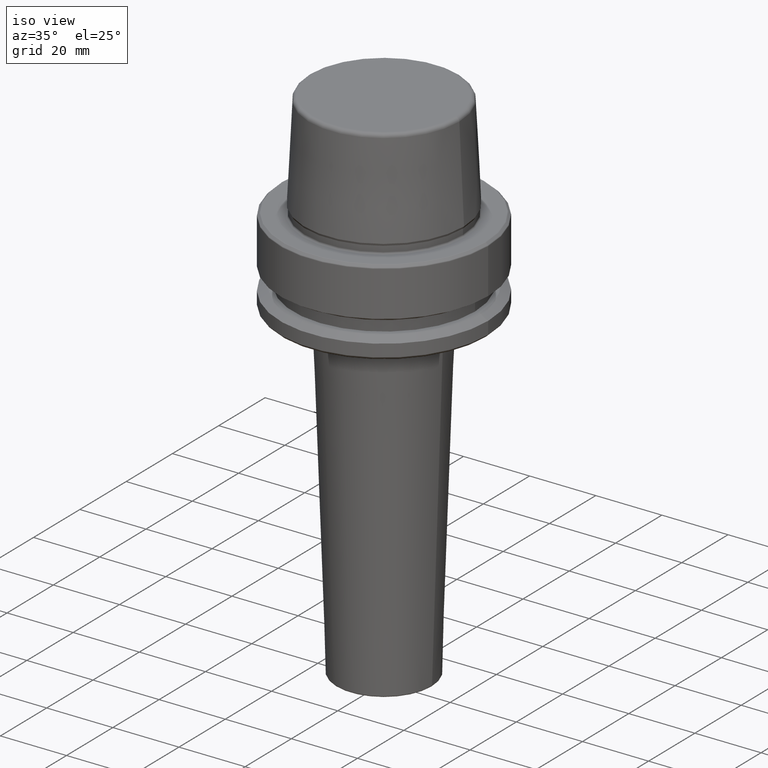
[diagram: clean part render]
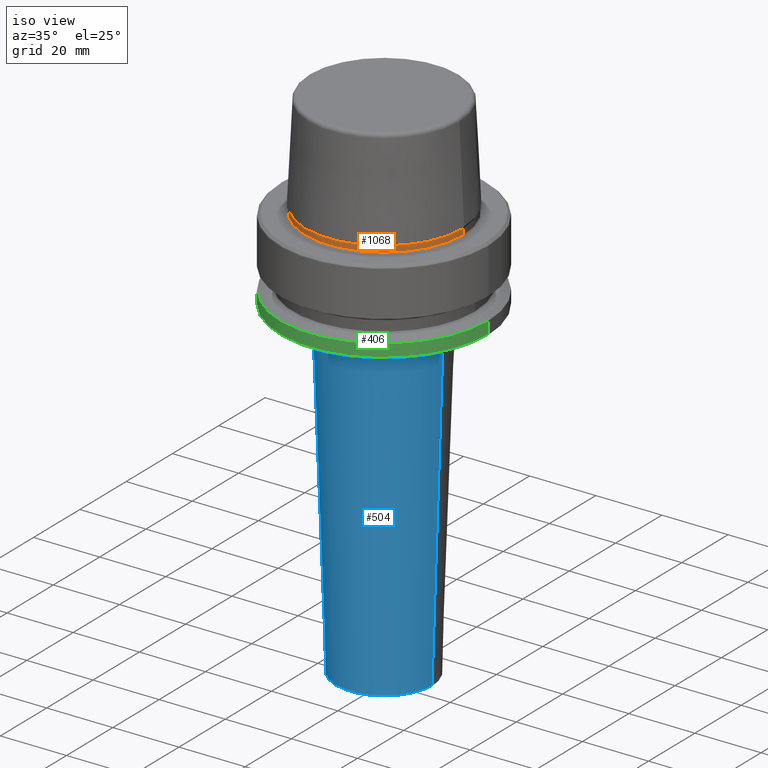
[diagram: same view with three faces highlighted in distinct colors, each labeled with its STEP entity id]
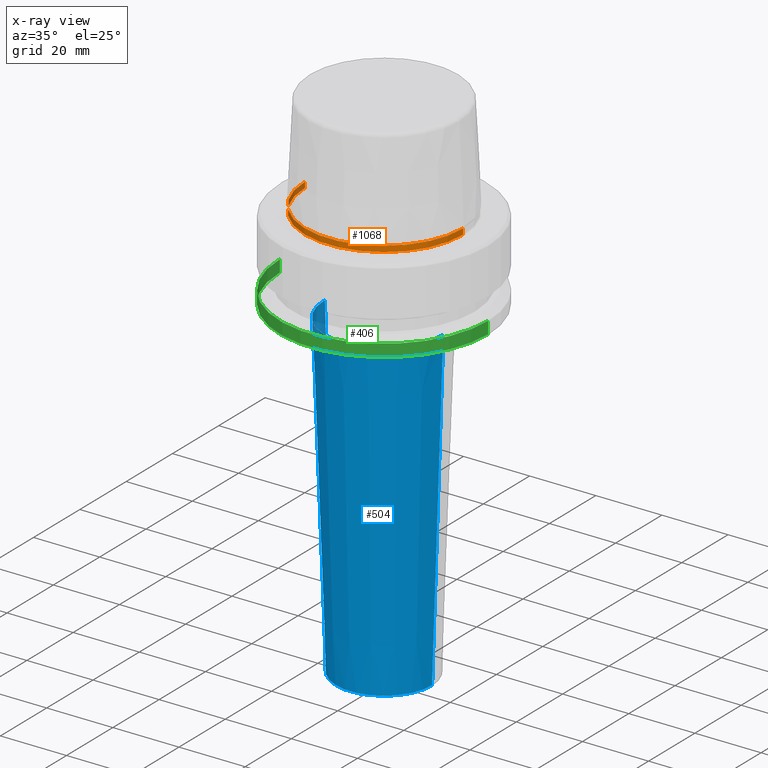
[diagram: x-ray of the same camera — body ghosted, the three highlighted faces saturated]
A machine part, iso view with three faces highlighted in distinct colors.
The next image is the same camera in x-ray (body ghosted, the three faces saturated) — at least one of them is partly hidden behind the body in this view.
Their STEP definitions:

[orange] entity #1068 — the highlighted cylindrical surface (partial cylindrical patch) has radius 23.89 mm, axis along (-0, -0, 1).
#6 = AXIS2_PLACEMENT_3D ( 'NONE', #471, #361, #1131 ) ;
#8 = AXIS2_PLACEMENT_3D ( 'NONE', #1193, #985, #408 ) ;
#53 = CARTESIAN_POINT ( 'NONE',  ( 23.89000000000000100, 0.0000000000000000000, 78.96908074195309300 ) ) ;
#68 = LINE ( 'NONE', #1033, #1074 ) ;
#89 = EDGE_CURVE ( 'NONE', #500, #1102, #931, .T. ) ;
#206 = VERTEX_POINT ( 'NONE', #352 ) ;
#208 = ORIENTED_EDGE ( 'NONE', *, *, #292, .T. ) ;
#279 = CARTESIAN_POINT ( 'NONE',  ( -23.89000000000000400, 2.961613815265650600E-015, 0.1312552021302954000 ) ) ;
#292 = EDGE_CURVE ( 'NONE', #1102, #512, #652, .T. ) ;
#314 = EDGE_CURVE ( 'NONE', #500, #206, #68, .T. ) ;
#352 = CARTESIAN_POINT ( 'NONE',  ( -23.89000000000000100, 2.944380070784114200E-015, 1.845119734979375100 ) ) ;
#361 = DIRECTION ( 'NONE',  ( -0.0000000000000000000, -0.0000000000000000000, 1.000000000000000000 ) ) ;
#381 = CARTESIAN_POINT ( 'NONE',  ( 23.89000000000000100, 0.0000000000000000000, 1.845119734979375100 ) ) ;
#398 = VECTOR ( 'NONE', #741, 1000.000000000000000 ) ;
#408 = DIRECTION ( 'NONE',  ( 1.000000000000000000, 0.0000000000000000000, 0.0000000000000000000 ) ) ;
#471 = CARTESIAN_POINT ( 'NONE',  ( 0.0000000000000000000, 0.0000000000000000000, 78.96908074195309300 ) ) ;
#500 = VERTEX_POINT ( 'NONE', #279 ) ;
#512 = VERTEX_POINT ( 'NONE', #381 ) ;
#521 = AXIS2_PLACEMENT_3D ( 'NONE', #526, #1192, #606 ) ;
#526 = CARTESIAN_POINT ( 'NONE',  ( 0.0000000000000000000, 0.0000000000000000000, 1.845119734979375100 ) ) ;
#606 = DIRECTION ( 'NONE',  ( 1.000000000000000000, 0.0000000000000000000, 0.0000000000000000000 ) ) ;
#652 = LINE ( 'NONE', #53, #398 ) ;
#669 = ORIENTED_EDGE ( 'NONE', *, *, #834, .F. ) ;
#741 = DIRECTION ( 'NONE',  ( -0.0000000000000000000, -0.0000000000000000000, 1.000000000000000000 ) ) ;
#763 = CIRCLE ( 'NONE', #521, 23.89000000000000100 ) ;
#834 = EDGE_CURVE ( 'NONE', #206, #512, #763, .T. ) ;
#837 = DIRECTION ( 'NONE',  ( -0.0000000000000000000, -0.0000000000000000000, 1.000000000000000000 ) ) ;
#866 = EDGE_LOOP ( 'NONE', ( #1175, #899, #208, #669 ) ) ;
#899 = ORIENTED_EDGE ( 'NONE', *, *, #89, .T. ) ;
#931 = CIRCLE ( 'NONE', #8, 23.89000000000000400 ) ;
#985 = DIRECTION ( 'NONE',  ( -0.0000000000000000000, -0.0000000000000000000, 1.000000000000000000 ) ) ;
#1022 = FACE_OUTER_BOUND ( 'NONE', #866, .T. ) ;
#1033 = CARTESIAN_POINT ( 'NONE',  ( -23.89000000000000100, 2.925681203163027000E-015, 78.96908074195309300 ) ) ;
#1068 = ADVANCED_FACE ( 'NONE', ( #1022 ), #1260, .T. ) ;
#1074 = VECTOR ( 'NONE', #837, 1000.000000000000000 ) ;
#1102 = VERTEX_POINT ( 'NONE', #1244 ) ;
#1131 = DIRECTION ( 'NONE',  ( 1.000000000000000000, 0.0000000000000000000, 0.0000000000000000000 ) ) ;
#1175 = ORIENTED_EDGE ( 'NONE', *, *, #314, .F. ) ;
#1192 = DIRECTION ( 'NONE',  ( -0.0000000000000000000, -0.0000000000000000000, 1.000000000000000000 ) ) ;
#1193 = CARTESIAN_POINT ( 'NONE',  ( 0.0000000000000000000, 0.0000000000000000000, 0.1312552021302954000 ) ) ;
#1244 = CARTESIAN_POINT ( 'NONE',  ( 23.89000000000000400, 0.0000000000000000000, 0.1312552021302954000 ) ) ;
#1260 = CYLINDRICAL_SURFACE ( 'NONE', #6, 23.89000000000000100 ) ;

[blue] entity #504 — the highlighted conical surface has half-angle 2.005 deg.
#11 = VERTEX_POINT ( 'NONE', #731 ) ;
#114 = VECTOR ( 'NONE', #1148, 1000.000000000000000 ) ;
#180 = CARTESIAN_POINT ( 'NONE',  ( 17.99999999999999600, 0.0000000000000000000, -26.00000000000001100 ) ) ;
#202 = AXIS2_PLACEMENT_3D ( 'NONE', #1011, #437, #1104 ) ;
#218 = ORIENTED_EDGE ( 'NONE', *, *, #1084, .T. ) ;
#252 = DIRECTION ( 'NONE',  ( -0.0000000000000000000, -0.0000000000000000000, -1.000000000000000000 ) ) ;
#291 = AXIS2_PLACEMENT_3D ( 'NONE', #833, #252, #930 ) ;
#315 = LINE ( 'NONE', #180, #1062 ) ;
#320 = EDGE_CURVE ( 'NONE', #1204, #940, #819, .T. ) ;
#376 = LINE ( 'NONE', #1047, #114 ) ;
#421 = ORIENTED_EDGE ( 'NONE', *, *, #507, .T. ) ;
#437 = DIRECTION ( 'NONE',  ( 0.0000000000000000000, 0.0000000000000000000, 1.000000000000000000 ) ) ;
#504 = ADVANCED_FACE ( 'NONE', ( #765 ), #550, .T. ) ;
#507 = EDGE_CURVE ( 'NONE', #1166, #1204, #315, .T. ) ;
#550 = CONICAL_SURFACE ( 'NONE', #1072, 17.99999999999999600, 0.03498571882852565000 ) ;
#568 = DIRECTION ( 'NONE',  ( 1.000000000000000000, 0.0000000000000000000, 0.0000000000000000000 ) ) ;
#631 = CARTESIAN_POINT ( 'NONE',  ( 14.51688787481193500, 0.0000000000000000000, -125.5174892910878000 ) ) ;
#672 = EDGE_LOOP ( 'NONE', ( #738, #218, #421, #1188 ) ) ;
#731 = CARTESIAN_POINT ( 'NONE',  ( -14.51688787481193700, 1.984880628156242600E-015, -125.5174892910878000 ) ) ;
#738 = ORIENTED_EDGE ( 'NONE', *, *, #928, .F. ) ;
#765 = FACE_OUTER_BOUND ( 'NONE', #672, .T. ) ;
#774 = CARTESIAN_POINT ( 'NONE',  ( -17.89867275112843400, 2.191955229365538800E-015, -28.89506425347315100 ) ) ;
#819 = CIRCLE ( 'NONE', #291, 17.89867275112843700 ) ;
#833 = CARTESIAN_POINT ( 'NONE',  ( 0.0000000000000000000, 0.0000000000000000000, -28.89506425347315100 ) ) ;
#852 = DIRECTION ( 'NONE',  ( 0.03497858217561852100, 0.0000000000000000000, 0.9993880621605321100 ) ) ;
#928 = EDGE_CURVE ( 'NONE', #11, #940, #376, .T. ) ;
#930 = DIRECTION ( 'NONE',  ( 1.000000000000000000, 0.0000000000000000000, 0.0000000000000000000 ) ) ;
#940 = VERTEX_POINT ( 'NONE', #774 ) ;
#1003 = CARTESIAN_POINT ( 'NONE',  ( 17.89867275112843400, 0.0000000000000000000, -28.89506425347315100 ) ) ;
#1011 = CARTESIAN_POINT ( 'NONE',  ( 0.0000000000000000000, 0.0000000000000000000, -125.5174892910878000 ) ) ;
#1047 = CARTESIAN_POINT ( 'NONE',  ( -17.99999999999999600, 2.204364238465235000E-015, -26.00000000000001100 ) ) ;
#1062 = VECTOR ( 'NONE', #852, 1000.000000000000000 ) ;
#1072 = AXIS2_PLACEMENT_3D ( 'NONE', #1259, #1140, #568 ) ;
#1084 = EDGE_CURVE ( 'NONE', #11, #1166, #1190, .T. ) ;
#1104 = DIRECTION ( 'NONE',  ( 1.000000000000000000, 0.0000000000000000000, 0.0000000000000000000 ) ) ;
#1140 = DIRECTION ( 'NONE',  ( 0.0000000000000000000, 0.0000000000000000000, 1.000000000000000000 ) ) ;
#1148 = DIRECTION ( 'NONE',  ( -0.03497858217561852100, 4.283640870008388600E-018, 0.9993880621605321100 ) ) ;
#1166 = VERTEX_POINT ( 'NONE', #631 ) ;
#1188 = ORIENTED_EDGE ( 'NONE', *, *, #320, .T. ) ;
#1190 = CIRCLE ( 'NONE', #202, 14.51688787481193500 ) ;
#1204 = VERTEX_POINT ( 'NONE', #1003 ) ;
#1259 = CARTESIAN_POINT ( 'NONE',  ( 0.0000000000000000000, 0.0000000000000000000, -26.00000000000001100 ) ) ;

[green] entity #406 — the highlighted cylindrical surface (partial cylindrical patch) has radius 31.5 mm, axis along (-0, -0, 1).
#59 = DIRECTION ( 'NONE',  ( -0.0000000000000000000, -0.0000000000000000000, 1.000000000000000000 ) ) ;
#158 = CARTESIAN_POINT ( 'NONE',  ( 0.0000000000000000000, 0.0000000000000000000, 78.96908074195309300 ) ) ;
#193 = ORIENTED_EDGE ( 'NONE', *, *, #1096, .F. ) ;
#215 = CYLINDRICAL_SURFACE ( 'NONE', #874, 31.50000000000000000 ) ;
#230 = EDGE_LOOP ( 'NONE', ( #193, #451, #567, #433 ) ) ;
#280 = CIRCLE ( 'NONE', #863, 31.50000000000000000 ) ;
#328 = DIRECTION ( 'NONE',  ( -0.0000000000000000000, -0.0000000000000000000, 1.000000000000000000 ) ) ;
#351 = DIRECTION ( 'NONE',  ( 1.000000000000000000, 0.0000000000000000000, 0.0000000000000000000 ) ) ;
#404 = DIRECTION ( 'NONE',  ( -0.0000000000000000000, -0.0000000000000000000, 1.000000000000000000 ) ) ;
#406 = ADVANCED_FACE ( 'NONE', ( #1249 ), #215, .T. ) ;
#420 = CARTESIAN_POINT ( 'NONE',  ( -31.50000000000000000, 3.857637417314161900E-015, -25.03431457505077200 ) ) ;
#429 = CARTESIAN_POINT ( 'NONE',  ( 31.50000000000000000, 0.0000000000000000000, 78.96908074195309300 ) ) ;
#433 = ORIENTED_EDGE ( 'NONE', *, *, #620, .F. ) ;
#443 = VECTOR ( 'NONE', #810, 1000.000000000000000 ) ;
#451 = ORIENTED_EDGE ( 'NONE', *, *, #1018, .T. ) ;
#455 = VECTOR ( 'NONE', #328, 1000.000000000000000 ) ;
#478 = CARTESIAN_POINT ( 'NONE',  ( -31.50000000000000000, 3.857637417314162700E-015, -21.37749907475931700 ) ) ;
#543 = AXIS2_PLACEMENT_3D ( 'NONE', #981, #404, #1076 ) ;
#557 = CARTESIAN_POINT ( 'NONE',  ( 31.50000000000000000, 0.0000000000000000000, -21.37749907475931700 ) ) ;
#567 = ORIENTED_EDGE ( 'NONE', *, *, #875, .T. ) ;
#574 = VERTEX_POINT ( 'NONE', #478 ) ;
#620 = EDGE_CURVE ( 'NONE', #574, #1063, #720, .T. ) ;
#644 = CARTESIAN_POINT ( 'NONE',  ( 0.0000000000000000000, 0.0000000000000000000, -25.03431457505077200 ) ) ;
#720 = CIRCLE ( 'NONE', #543, 31.50000000000000000 ) ;
#737 = LINE ( 'NONE', #764, #455 ) ;
#742 = DIRECTION ( 'NONE',  ( -0.0000000000000000000, -0.0000000000000000000, 1.000000000000000000 ) ) ;
#744 = DIRECTION ( 'NONE',  ( 1.000000000000000000, 0.0000000000000000000, 0.0000000000000000000 ) ) ;
#764 = CARTESIAN_POINT ( 'NONE',  ( -31.50000000000000000, 3.857637417314162700E-015, 78.96908074195309300 ) ) ;
#771 = CARTESIAN_POINT ( 'NONE',  ( 31.50000000000000000, 0.0000000000000000000, -25.03431457505077200 ) ) ;
#810 = DIRECTION ( 'NONE',  ( -0.0000000000000000000, -0.0000000000000000000, 1.000000000000000000 ) ) ;
#860 = VERTEX_POINT ( 'NONE', #420 ) ;
#863 = AXIS2_PLACEMENT_3D ( 'NONE', #644, #59, #744 ) ;
#874 = AXIS2_PLACEMENT_3D ( 'NONE', #158, #742, #351 ) ;
#875 = EDGE_CURVE ( 'NONE', #1012, #1063, #1176, .T. ) ;
#981 = CARTESIAN_POINT ( 'NONE',  ( 0.0000000000000000000, 0.0000000000000000000, -21.37749907475931700 ) ) ;
#1012 = VERTEX_POINT ( 'NONE', #771 ) ;
#1018 = EDGE_CURVE ( 'NONE', #860, #1012, #280, .T. ) ;
#1063 = VERTEX_POINT ( 'NONE', #557 ) ;
#1076 = DIRECTION ( 'NONE',  ( 1.000000000000000000, 0.0000000000000000000, 0.0000000000000000000 ) ) ;
#1096 = EDGE_CURVE ( 'NONE', #860, #574, #737, .T. ) ;
#1176 = LINE ( 'NONE', #429, #443 ) ;
#1249 = FACE_OUTER_BOUND ( 'NONE', #230, .T. ) ;